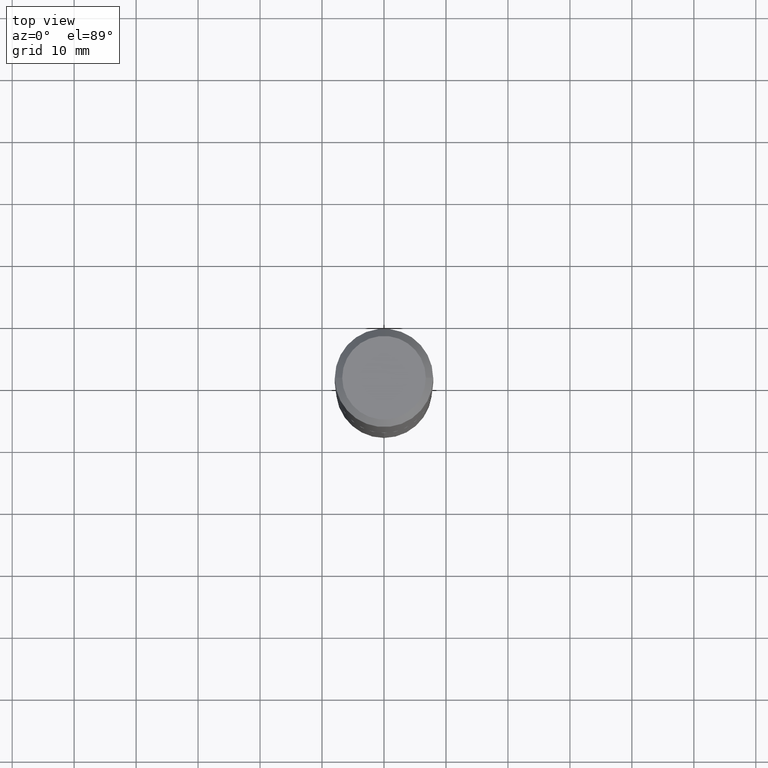
[diagram: clean part render]
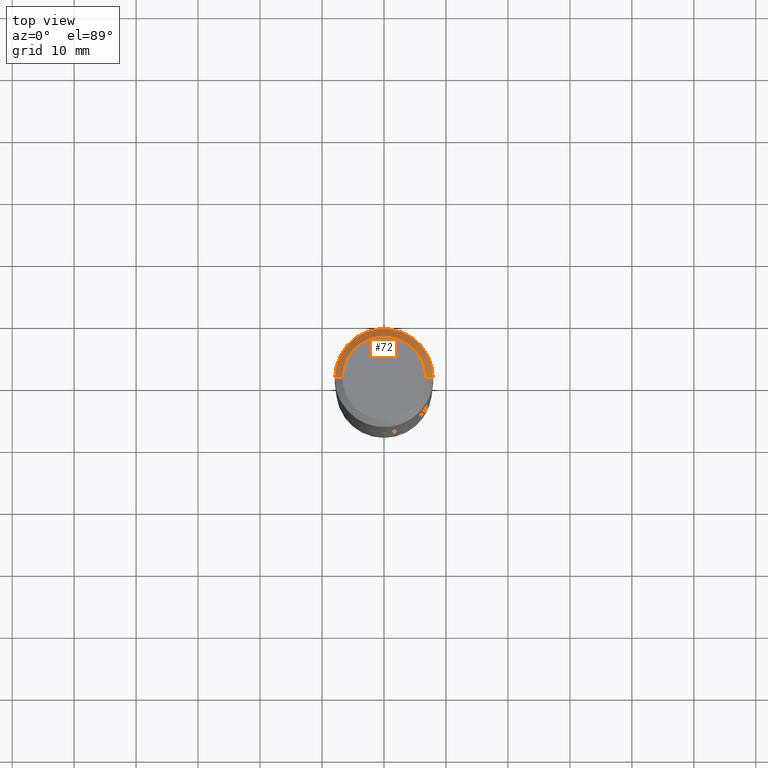
[diagram: same view with one face highlighted and labeled with its STEP entity id]
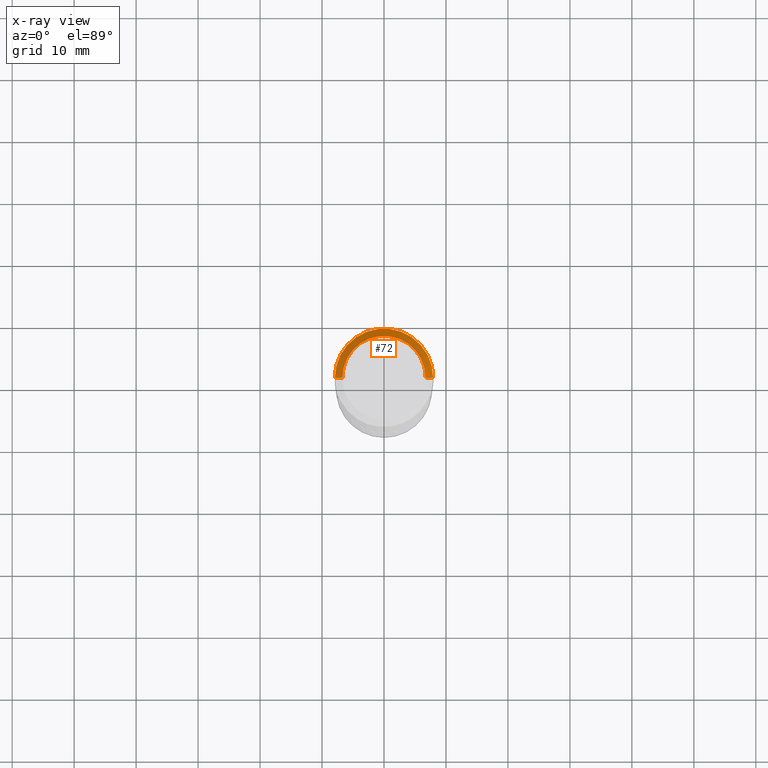
[diagram: x-ray of the same camera — body ghosted, the highlighted face saturated]
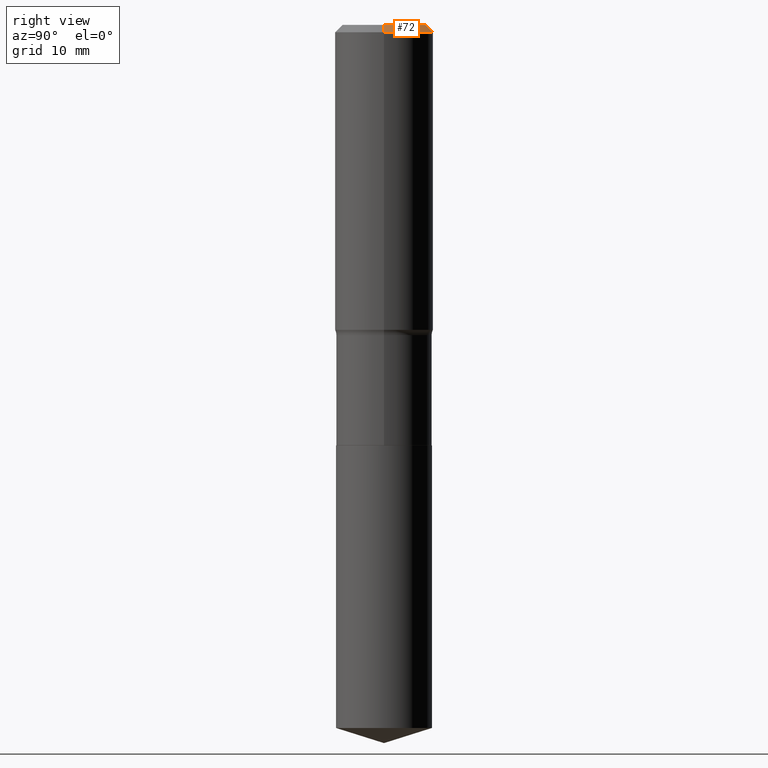
[diagram: same view with one face highlighted and labeled with its STEP entity id]
A machine part, top view. The second image highlights one B-rep face of the part: STEP entity #72.
The next image is the same camera in x-ray: the body ghosted, the highlighted face saturated — about 0% of this face is hidden behind the body in this view.
A second angle (right view) of the same face is appended — the face is thin or edge-on in the first view.
In plain terms, the highlighted conical surface has half-angle 45 deg.
Its self-contained STEP definition (entity closure, byte-faithful):
#6 = DIRECTION ( 'NONE',  ( 0.7071067811865454633, -7.319954787623248157E-15, -0.7071067811865495711 ) ) ;
#23 = DIRECTION ( 'NONE',  ( 1.000000000000000000, -6.982962677686268288E-15, 4.875573276536765329E-29 ) ) ;
#41 = CARTESIAN_POINT ( 'NONE',  ( 1.146313502899288910E-30, -1.636631877582733305E-16, -0.04687500000000024980 ) ) ;
#72 = ADVANCED_FACE ( 'NONE', ( #463 ), #95, .T. ) ;
#77 = EDGE_CURVE ( 'NONE', #213, #475, #123, .T. ) ;
#95 = CONICAL_SURFACE ( 'NONE', #297, 0.3125000000000000000, 0.7853981633974453924 ) ;
#115 = CARTESIAN_POINT ( 'NONE',  ( -0.2656250000000000000, 1.936681055139549843E-15, 1.951780836139768664E-17 ) ) ;
#120 = DIRECTION ( 'NONE',  ( -2.445468806185136597E-29, 3.491481338843145583E-15, 1.000000000000000000 ) ) ;
#123 = LINE ( 'NONE', #277, #269 ) ;
#125 = ORIENTED_EDGE ( 'NONE', *, *, #77, .F. ) ;
#142 = AXIS2_PLACEMENT_3D ( 'NONE', #327, #323, #23 ) ;
#146 = VERTEX_POINT ( 'NONE', #281 ) ;
#159 = DIRECTION ( 'NONE',  ( -1.000000000000000000, 6.982962677686266711E-15, 0.000000000000000000 ) ) ;
#203 = CARTESIAN_POINT ( 'NONE',  ( -0.3125000000000000000, -1.243060822280509884E-15, -0.04687500000000024980 ) ) ;
#213 = VERTEX_POINT ( 'NONE', #115 ) ;
#231 = CARTESIAN_POINT ( 'NONE',  ( 0.3125000000000000000, -2.307568812061876870E-15, -0.04687500000000024980 ) ) ;
#237 = EDGE_CURVE ( 'NONE', #264, #146, #240, .T. ) ;
#240 = LINE ( 'NONE', #231, #408 ) ;
#264 = VERTEX_POINT ( 'NONE', #418 ) ;
#267 = CARTESIAN_POINT ( 'NONE',  ( 1.146313502899288910E-30, -1.636631877582733305E-16, -0.04687500000000024980 ) ) ;
#269 = VECTOR ( 'NONE', #396, 39.37007874015748143 ) ;
#277 = CARTESIAN_POINT ( 'NONE',  ( -0.3125000000000000000, 2.018512649018685091E-15, -0.04687500000000024980 ) ) ;
#278 = ORIENTED_EDGE ( 'NONE', *, *, #237, .T. ) ;
#281 = CARTESIAN_POINT ( 'NONE',  ( 0.3125000000000000000, -2.345839024535231998E-15, -0.04687500000000024980 ) ) ;
#297 = AXIS2_PLACEMENT_3D ( 'NONE', #267, #466, #159 ) ;
#312 = CIRCLE ( 'NONE', #142, 0.2656250000000000000 ) ;
#320 = CIRCLE ( 'NONE', #458, 0.3125000000000000000 ) ;
#323 = DIRECTION ( 'NONE',  ( -2.445468806185136597E-29, 3.491481338843145583E-15, 1.000000000000000000 ) ) ;
#327 = CARTESIAN_POINT ( 'NONE',  ( -4.773019151292989710E-46, 6.814606366898303014E-32, 1.951780836141094628E-17 ) ) ;
#335 = ORIENTED_EDGE ( 'NONE', *, *, #337, .T. ) ;
#337 = EDGE_CURVE ( 'NONE', #146, #475, #320, .T. ) ;
#344 = DIRECTION ( 'NONE',  ( 1.000000000000000000, -6.982962677686268288E-15, 0.000000000000000000 ) ) ;
#377 = ORIENTED_EDGE ( 'NONE', *, *, #481, .F. ) ;
#396 = DIRECTION ( 'NONE',  ( -0.7071067811865454633, 2.468850131082235367E-15, -0.7071067811865495711 ) ) ;
#408 = VECTOR ( 'NONE', #6, 39.37007874015748143 ) ;
#418 = CARTESIAN_POINT ( 'NONE',  ( 0.2656250000000000000, -2.064944296359970168E-15, 1.951780836142464966E-17 ) ) ;
#458 = AXIS2_PLACEMENT_3D ( 'NONE', #41, #120, #344 ) ;
#463 = FACE_OUTER_BOUND ( 'NONE', #482, .T. ) ;
#466 = DIRECTION ( 'NONE',  ( 2.445468806185136597E-29, -3.491481338843145583E-15, -1.000000000000000000 ) ) ;
#475 = VERTEX_POINT ( 'NONE', #203 ) ;
#481 = EDGE_CURVE ( 'NONE', #264, #213, #312, .T. ) ;
#482 = EDGE_LOOP ( 'NONE', ( #377, #278, #335, #125 ) ) ;